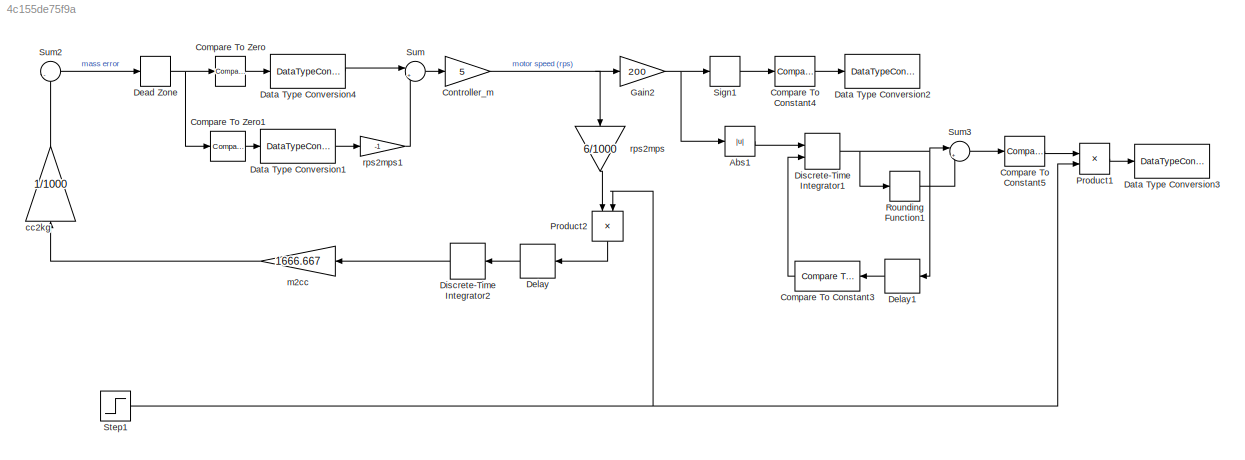
MODEL slx_4c155de75f9a
KIND model
CONFIG AbsTol = auto
CONFIG EnableMultiTasking = on
CONFIG FixedStep = auto
CONFIG MaxStep = auto
CONFIG MinStep = auto
CONFIG RelTol = 1e-3
CONFIG SampleTimeConstraint = Unconstrained
CONFIG SolverName = FixedStepAuto
CONFIG StartTime = 0.0
CONFIG StopTime = 100
BLOCK [Abs] Abs1
  SaturateOnIntegerOverflow = off
BLOCK [Reference] Compare To Constant3  REF=simulink/Logic and Bit
Operations/Compare
To Constant
  Ports = [1, 1]
  SourceBlock = simulink/Logic and Bit\nOperations/Compare\nTo Constant
  SourceProductBaseCode = SL
  SourceType = Compare To Constant
BLOCK [Reference] Compare To Constant4  REF=simulink/Logic and Bit
Operations/Compare
To Constant
  Ports = [1, 1]
  SourceBlock = simulink/Logic and Bit\nOperations/Compare\nTo Constant
  SourceProductBaseCode = SL
  SourceType = Compare To Constant
BLOCK [Reference] Compare To Constant5  REF=simulink/Logic and Bit
Operations/Compare
To Constant
  Ports = [1, 1]
  SourceBlock = simulink/Logic and Bit\nOperations/Compare\nTo Constant
  SourceProductBaseCode = SL
  SourceType = Compare To Constant
BLOCK [Reference] Compare To Zero  REF=simulink/Logic and Bit
Operations/Compare
To Zero
  Ports = [1, 1]
  SourceBlock = simulink/Logic and Bit\nOperations/Compare\nTo Zero
  SourceProductBaseCode = SL
  SourceType = Compare To Zero
BLOCK [Reference] Compare To Zero1  REF=simulink/Logic and Bit
Operations/Compare
To Zero
  Ports = [1, 1]
  SourceBlock = simulink/Logic and Bit\nOperations/Compare\nTo Zero
  SourceProductBaseCode = SL
  SourceType = Compare To Zero
BLOCK [Gain] Controller_m
  Gain = 5
BLOCK [DataTypeConversion] Data Type Conversion1
  OutDataTypeStr = double
  RndMeth = Floor
  SaturateOnIntegerOverflow = off
BLOCK [DataTypeConversion] Data Type Conversion2
  OutDataTypeStr = uint8
  RndMeth = Floor
  SaturateOnIntegerOverflow = off
BLOCK [DataTypeConversion] Data Type Conversion3
  OutDataTypeStr = uint8
  RndMeth = Floor
  SaturateOnIntegerOverflow = off
BLOCK [DataTypeConversion] Data Type Conversion4
  OutDataTypeStr = double
  RndMeth = Floor
  SaturateOnIntegerOverflow = off
BLOCK [DeadZone] Dead Zone
  LowerValue = -0.0001
  UpperValue = 0.0001
BLOCK [Delay] Delay
  DelayLength = 1
  InputPortMap = u0
  Ports = [1, 1]
  SampleTime = 1/5000
BLOCK [Delay] Delay1
  DelayLength = 1
  InputPortMap = u0
  Ports = [1, 1]
BLOCK [DiscreteIntegrator] Discrete-Time Integrator1
  ExternalReset = rising
  ICPrevOutput = DiscIntNeverNeededParam
  ICPrevScaledInput = DiscIntNeverNeededParam
  InitialConditionSetting = Auto
  Ports = [2, 1]
  SampleTime = 1/5000
BLOCK [DiscreteIntegrator] Discrete-Time Integrator2
  ICPrevOutput = DiscIntNeverNeededParam
  ICPrevScaledInput = DiscIntNeverNeededParam
  InitialConditionSetting = Auto
  Ports = [1, 1]
  SampleTime = 1/5000
BLOCK [Gain] Gain2
  Gain = 200
BLOCK [Product] Product1
  Ports = [2, 1]
BLOCK [Product] Product2
  NameLocation = left
  Ports = [2, 1]
BLOCK [Rounding] Rounding Function1
BLOCK [Signum] Sign1
BLOCK [Step] Step1
  Time = 3
BLOCK [Sum] Sum
  Inputs = |++
  Ports = [2, 1]
BLOCK [Sum] Sum2
  Inputs = |-+
  Ports = [2, 1]
BLOCK [Sum] Sum3
  Inputs = |+-
  Ports = [2, 1]
BLOCK [Gain] cc2kg
  Gain = 1/1000
  NameLocation = right
BLOCK [Gain] m2cc
  Gain = 1666.667
  NameLocation = top
BLOCK [Gain] rps2mps
  Gain = 6/1000
  NameLocation = left
BLOCK [Gain] rps2mps1
  Gain = -1
LINE Abs1:1 -> Discrete-Time Integrator1:1
LINE Compare To Constant3:1 -> Discrete-Time Integrator1:2
LINE Compare To Constant4:1 -> Data Type Conversion2:1
LINE Compare To Constant5:1 -> Product1:1
LINE Compare To Zero1:1 -> Data Type Conversion1:1
LINE Compare To Zero:1 -> Data Type Conversion4:1
NET Controller_m:1 -> Gain2:1, rps2mps:1
LINE Data Type Conversion1:1 -> rps2mps1:1
LINE Data Type Conversion4:1 -> Sum:1
NET Dead Zone:1 -> Compare To Zero1:1, Compare To Zero:1
LINE Delay1:1 -> Compare To Constant3:1
LINE Delay:1 -> Discrete-Time Integrator2:1
NET Discrete-Time Integrator1:1 -> Delay1:1, Rounding Function1:1, Sum3:1
LINE Discrete-Time Integrator2:1 -> m2cc:1
NET Gain2:1 -> Abs1:1, Sign1:1
LINE Product1:1 -> Data Type Conversion3:1
LINE Product2:1 -> Delay:1
LINE Rounding Function1:1 -> Sum3:2
LINE Sign1:1 -> Compare To Constant4:1
NET Step1:1 -> Product1:2, Product2:2
LINE Sum2:1 -> Dead Zone:1
LINE Sum3:1 -> Compare To Constant5:1
LINE Sum:1 -> Controller_m:1
LINE cc2kg:1 -> Sum2:2
LINE m2cc:1 -> cc2kg:1
LINE rps2mps1:1 -> Sum:2
LINE rps2mps:1 -> Product2:1
note: NET lines group one-source signal fan-out (src -> all destinations, sorted); 1:1 wires keep LINE
